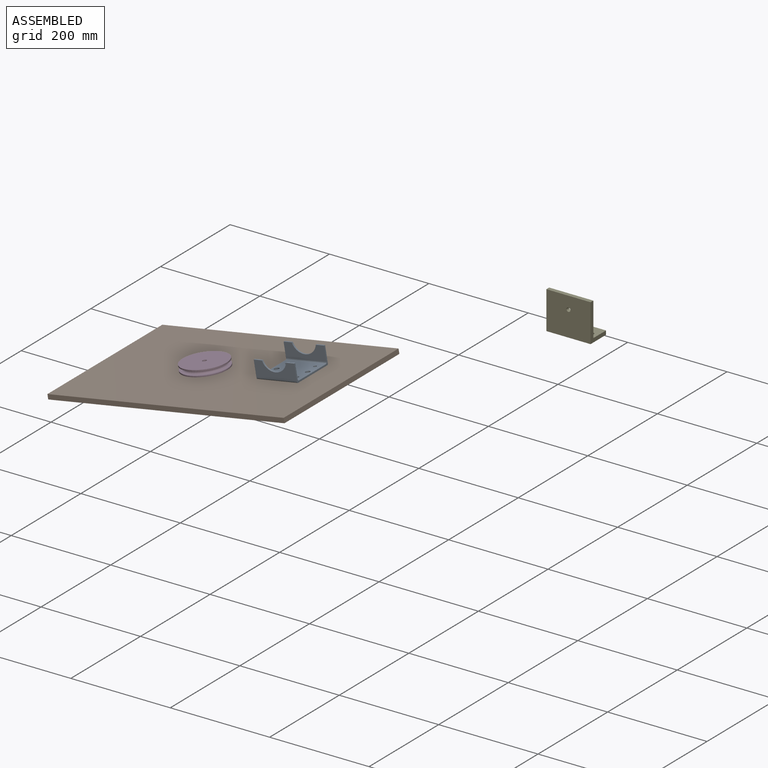
[diagram: assembled view]
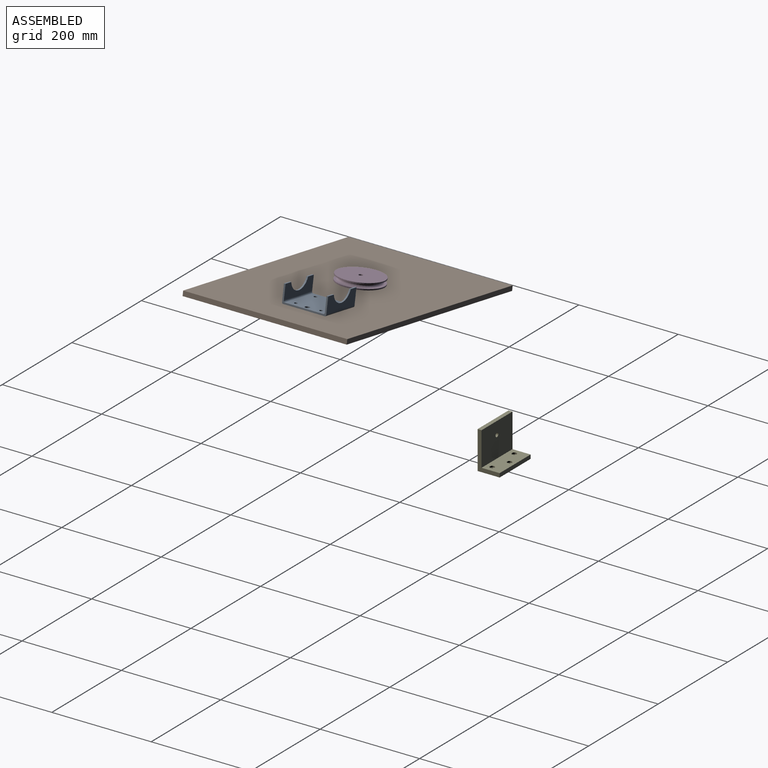
[diagram: assembled view, second angle]
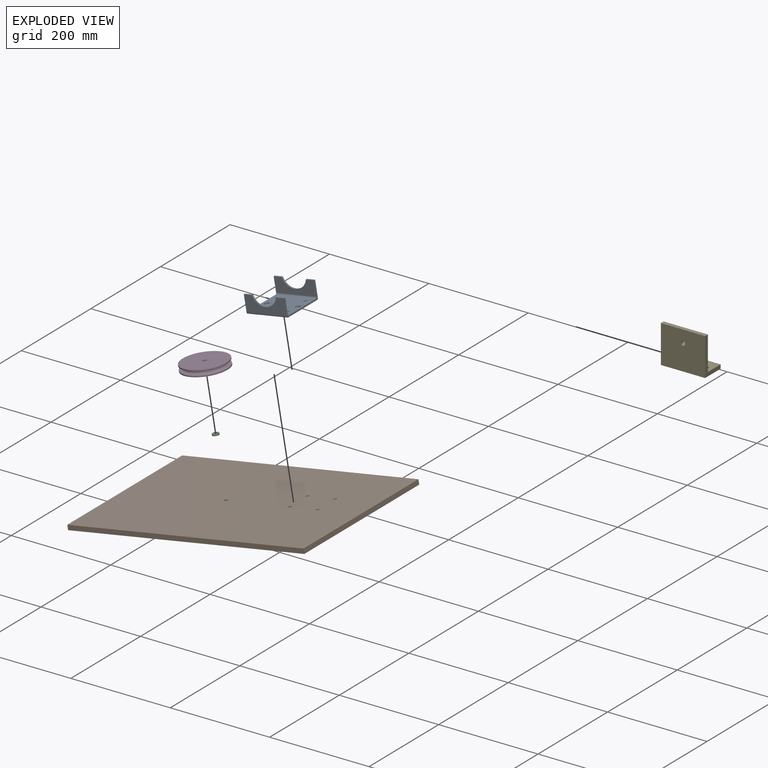
[diagram: exploded view]
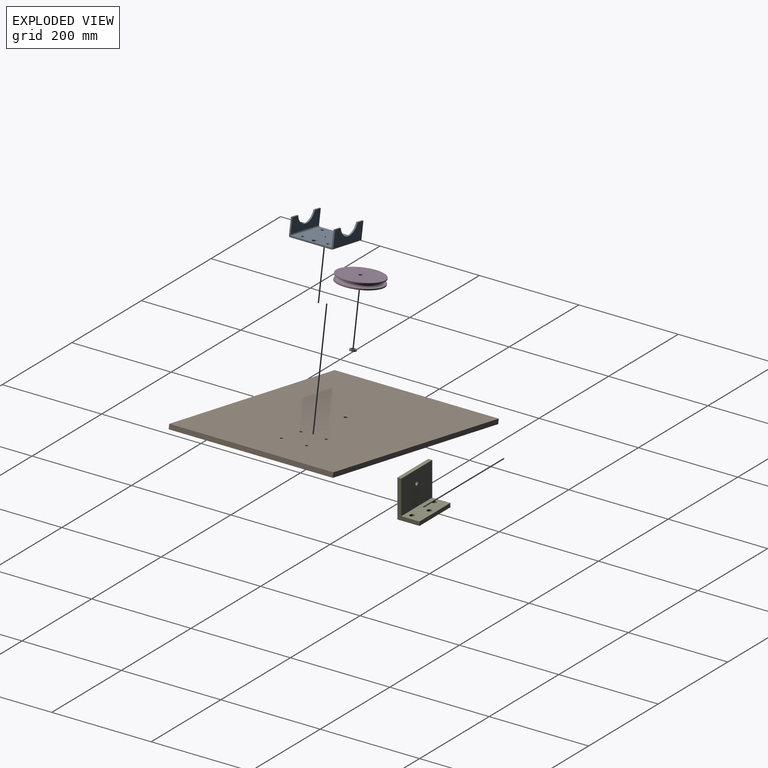
[diagram: exploded view, second angle]
ASSEMBLY  parts=5 mates=5
PART A: 24 faces, bbox 91x89x35.1 mm
  f0: plane 16.68x3.18mm, normal (0,0,1), area 53mm2, adj f5,f7,f8,f13
  f1: plane 16.68x3.18mm, normal (0,0,1), area 53mm2, adj f5,f6,f7,f13
  f2: plane 16.68x3.18mm, normal (0,0,1), area 53mm2, adj f8,f10,f11,f12
  f3: plane 16.68x3.18mm, normal (0,0,1), area 53mm2, adj f6,f10,f11,f12
  f4: plane 82.55x76.2mm, normal (0,0,1), area 6021.1mm2, adj f6,f8,f14,f15,f16,f17,f18,f19
  f5: plane 82.55x28.58mm, normal (0,1,0), area 1664.6mm2, adj f0,f1,f6,f8,f13,f21
  f6: plane 89.05x35.07mm, normal (-1,0,0), area 483.9mm2, adj f1,f3,f4,f5,f7,f9,f10,f11
  f7: plane 82.55x31.75mm, normal (0,-1,0), area 1926.7mm2, adj f0,f1,f6,f8,f13,f23
  f8: plane 89.05x35.07mm, normal (1,0,0), area 483.9mm2, adj f0,f2,f4,f5,f7,f9,f10,f11
  f9: plane 82.55x82.55mm, normal (0,0,-1), area 6545.3mm2, adj f6,f8,f14,f15,f16,f17,f18,f19
  f10: plane 82.55x31.75mm, normal (0,1,0), area 1926.7mm2, adj f2,f3,f6,f8,f12,f22
  f11: plane 82.55x28.58mm, normal (0,-1,0), area 1664.6mm2, adj f2,f3,f6,f8,f12,f20
  f12: cylinder r=25.4mm len=49.19mm, axis (0,1,0), area 212.6mm2, adj f2,f3,f10,f11
  f13: cylinder r=25.4mm len=49.19mm, axis (0,1,0), area 212.6mm2, adj f0,f1,f5,f7
  f14: cylinder r=3.17mm len=6.35mm, axis (0,0,1), area 63.3mm2, adj f4,f9
  f15: cylinder r=4.76mm len=9.53mm, axis (0,0,1), area 95mm2, adj f4,f9
  f16: cylinder r=3.17mm len=6.35mm, axis (0,0,1), area 63.3mm2, adj f4,f9
  f17: cylinder r=3.17mm len=6.35mm, axis (0,0,1), area 63.3mm2, adj f4,f9
  f18: cylinder r=4.76mm len=9.53mm, axis (0,0,1), area 95mm2, adj f4,f9
  f19: cylinder r=3.17mm len=6.35mm, axis (0,0,1), area 63.3mm2, adj f4,f9
  f20: bspline ~90.81x3.18mm, area 426.2mm2, adj f4,f6,f8,f11
  f21: bspline ~90.81x3.18mm, area 426.2mm2, adj f4,f5,f6,f8
  f22: bspline ~90.81x3.18mm, area 426.2mm2, adj f6,f8,f9,f10
  f23: bspline ~90.81x3.18mm, area 426.2mm2, adj f6,f7,f8,f9
PART B: 11 faces, bbox 482.6x330.2x9.5 mm
  f0: plane 482.6x9.53mm, normal (0,1,0), area 4596.8mm2, adj f1,f7,f8,f9
  f1: plane 330.2x9.53mm, normal (-1,0,0), area 3145.2mm2, adj f0,f2,f8,f9
  f2: plane 482.6x9.53mm, normal (0,-1,0), area 4596.8mm2, adj f1,f7,f8,f9
  f3: cylinder r=3.17mm len=9.53mm, axis (0,0,-1), area 190mm2, adj f8,f9
  f4: cylinder r=3.17mm len=9.53mm, axis (0,0,-1), area 190mm2, adj f8,f9
  f5: cylinder r=3.17mm len=9.53mm, axis (0,0,-1), area 190mm2, adj f8,f9
  f6: cylinder r=3.17mm len=9.53mm, axis (0,0,-1), area 190mm2, adj f8,f9
  f7: plane 330.2x9.53mm, normal (1,0,0), area 3145.2mm2, adj f0,f2,f8,f9
  f8: plane 482.6x330.2mm, normal (0,0,1), area 159178.4mm2, adj f0,f1,f2,f3,f4,f5,f6,f7
  f9: plane 482.6x330.2mm, normal (0,0,-1), area 159178.4mm2, adj f0,f1,f2,f3,f4,f5,f6,f7
  f10: cylinder r=3.97mm len=9.53mm, axis (0,0,1), area 237.5mm2, adj f8,f9
PART C: 4 faces, bbox 12.7x12.7x3.2 mm
  f0: cylinder r=3.97mm len=7.94mm, axis (0,0,-1), area 79.2mm2, adj f2,f3
  f1: cylinder r=6.35mm len=12.7mm, axis (0,0,-1), area 126.7mm2, adj f2,f3
  f2: plane 12.7x12.7mm, normal (0,0,1), area 77.2mm2, adj f0,f1
  f3: plane 12.7x12.7mm, normal (0,0,-1), area 77.2mm2, adj f0,f1
PART D: 8 faces, bbox 94.1x94.1x12.7 mm
  f0: cylinder r=44.45mm len=88.9mm, axis (0,0,-1), area 665.1mm2, adj f4,f5
  f1: cylinder r=44.45mm len=88.9mm, axis (0,0,-1), area 665.1mm2, adj f3,f6
  f2: cylinder r=3.97mm len=12.7mm, axis (0,0,-1), area 316.7mm2, adj f3,f4
  f3: plane 88.9x88.9mm, normal (0,0,1), area 6157.7mm2, adj f1,f2
  f4: plane 88.9x88.9mm, normal (0,0,-1), area 6157.7mm2, adj f0,f2
  f5: plane 88.9x88.9mm, normal (0,0,1), area 1018.5mm2, adj f0,f7
  f6: plane 88.9x88.9mm, normal (0,0,-1), area 1018.5mm2, adj f1,f7
  f7: torus R=40.64mm, axis (0,0,1), area 2985.8mm2, adj f5,f6
PART E: 18 faces, bbox 88.9x44.5x76.2 mm
  f0: cylinder r=3.17mm len=6.35mm, axis (0,0,1), area 95mm2, adj f3,f17
  f1: cylinder r=3.17mm len=6.35mm, axis (0,0,1), area 95mm2, adj f3,f15
  f2: cylinder r=3.17mm len=6.35mm, axis (0,0,1), area 95mm2, adj f3,f13
  f3: plane 88.9x44.45mm, normal (0,0,-1), area 3856.6mm2, adj f0,f1,f2,f4,f8,f9,f10
  f4: plane 88.9x7.94mm, normal (0,1,0), area 705.6mm2, adj f3,f5,f9,f10
  f5: plane 88.9x36.51mm, normal (0,0,1), area 3032.2mm2, adj f4,f6,f9,f10,f12,f14,f16
  f6: plane 88.9x68.26mm, normal (0,1,0), area 6019.1mm2, adj f5,f7,f9,f10,f11
  f7: plane 88.9x7.94mm, normal (0,0,1), area 705.6mm2, adj f6,f8,f9,f10
  f8: plane 88.9x76.2mm, normal (0,-1,0), area 6724.7mm2, adj f3,f7,f9,f10,f11
  f9: plane 76.2x44.45mm, normal (-1,0,0), area 894.7mm2, adj f3,f4,f5,f6,f7,f8
  f10: plane 76.2x44.45mm, normal (1,0,0), area 894.7mm2, adj f3,f4,f5,f6,f7,f8
  f11: cylinder r=3.97mm len=7.94mm, axis (0,-1,0), area 197.9mm2, adj f6,f8
  f12: cylinder r=4.76mm len=9.53mm, axis (0,0,1), area 95mm2, adj f5,f13
  f13: plane 9.53x9.53mm, normal (0,0,1), area 39.6mm2, adj f2,f12
  f14: cylinder r=4.76mm len=9.53mm, axis (0,0,1), area 95mm2, adj f5,f15
  f15: plane 9.53x9.53mm, normal (0,0,1), area 39.6mm2, adj f1,f14
  f16: cylinder r=4.76mm len=9.53mm, axis (0,0,1), area 95mm2, adj f5,f17
  f17: plane 9.53x9.53mm, normal (0,0,1), area 39.6mm2, adj f0,f16
PLACE A rot(axis=(0,-1,0),10deg) t=(-440.14,-519.47,-33.88)mm
PLACE B rot(axis=(0,-1,0),10deg) t=(-757.41,-424.22,-99.5)mm fixed
PLACE C rot(axis=(0,-1,0),10deg) t=(-555.83,-589.32,-54.28)mm
PLACE D rot(axis=(-0.09,-0.09,0.99),86.3deg) t=(-556.38,-589.32,-51.16)mm
PLACE E t=(-147.72,-66.78,-98.53)mm
MATE revolute D.f2 <-> C.f1  axis (0.17,0,-0.98) through (-556.38,-589.32,-51.16)mm
MATE planar B.f5 <-> A.f14  axis (-0.17,0,0.98) through (-427.63,-538.52,-31.68)mm
MATE planar B.f5 <-> A.f14  axis (-0.17,0,0.98) through (-427.63,-538.52,-31.68)mm
MATE fastened C.f0 <-> B.f10  axis (0.17,0,-0.98) through (-555.83,-589.32,-54.28)mm
MATE fastened A.f19 <-> B.f3  axis (0.17,0,-0.98) through (-371.35,-538.52,-21.75)mm
